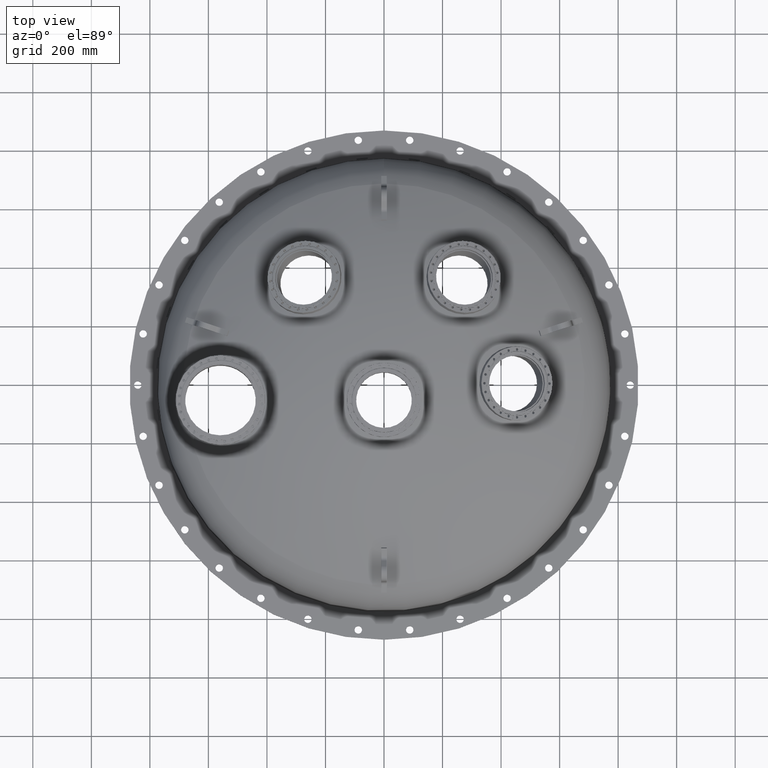
[diagram: clean part render]
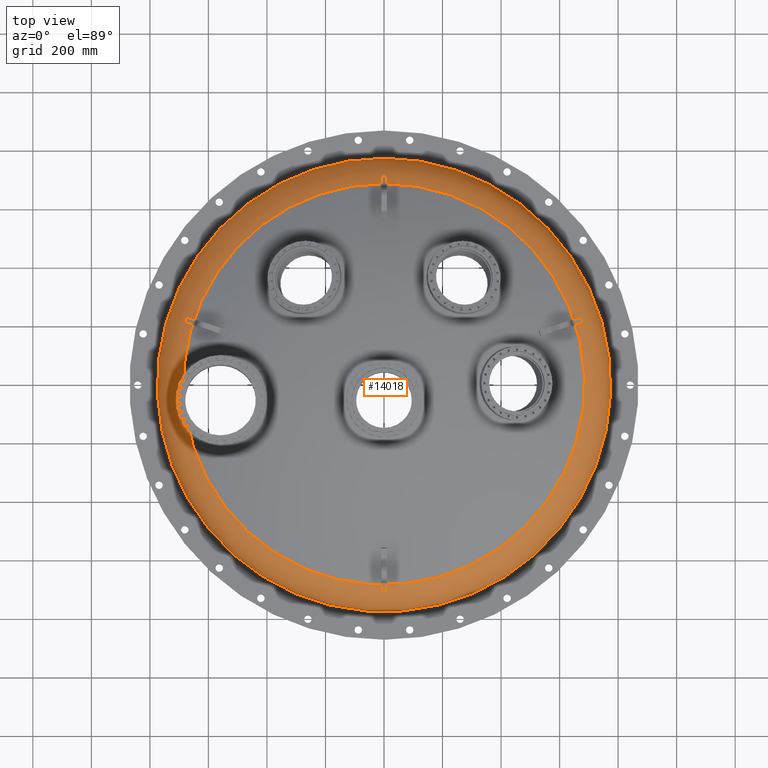
[diagram: same view with one face highlighted and labeled with its STEP entity id]
A machine part, top view. The second image highlights one B-rep face of the part: STEP entity #14018.
In plain terms, the highlighted toroidal blend (fillet) surface has major radius 614.68 mm and minor (blend) radius 160.02 mm.
Its self-contained STEP definition (entity closure, byte-faithful):
#1048 = CARTESIAN_POINT ( 'NONE',  ( -27.01216747661570849, -2.399672396012468845, 7.359969576722638074 ) ) ;
#1309 = TOROIDAL_SURFACE ( 'NONE', #17630, 24.20000000000000995, 6.299999999999999822 ) ;
#2039 = DIRECTION ( 'NONE',  ( 0.0000000000000000000, 1.000000000000000000, 3.672320253778188995E-15 ) ) ;
#2221 = CIRCLE ( 'NONE', #16174, 30.50000000000001066 ) ;
#2672 = DIRECTION ( 'NONE',  ( -0.0000000000000000000, 3.675178358715239233E-15, -1.000000000000000000 ) ) ;
#2717 = CARTESIAN_POINT ( 'NONE',  ( -26.95547353179765437, -1.549982798794369288, 7.420239801015093839 ) ) ;
#2781 = VERTEX_POINT ( 'NONE', #2717 ) ;
#3178 = ORIENTED_EDGE ( 'NONE', *, *, #14120, .T. ) ;
#3760 = CARTESIAN_POINT ( 'NONE',  ( 0.0000000000000000000, -6.529540093916330708E-15, 1.776659377206109891 ) ) ;
#3761 = VERTEX_POINT ( 'NONE', #11248 ) ;
#4333 = VERTEX_POINT ( 'NONE', #19248 ) ;
#4772 = CARTESIAN_POINT ( 'NONE',  ( -26.99467943047633511, -2.720328066586995330, 7.353145743680818747 ) ) ;
#4886 = CARTESIAN_POINT ( 'NONE',  ( 0.0000000000000000000, -4.370956789862821150E-15, 1.776659377206131873 ) ) ;
#4953 = B_SPLINE_CURVE_WITH_KNOTS ( 'NONE', 3,
 ( #16020, #6390, #6513, #16152, #23765, #21886, #4772, #10511, #18140, #1048, #8659, #6764, #13017, #22633 ),
 .UNSPECIFIED., .F., .F.,
 ( 4, 2, 2, 2, 2, 2, 4 ),
 ( 1.936736036716423733E-06, 0.01611801150312849873, 0.03223408627022028572, 0.03626310496199324634, 0.04029212365376620003, 0.04835016103731213516, 0.06446623580440399848 ),
 .UNSPECIFIED. ) ;
#5305 = EDGE_LOOP ( 'NONE', ( #17105 ) ) ;
#6344 = AXIS2_PLACEMENT_3D ( 'NONE', #23012, #17618, #13638 ) ;
#6390 = CARTESIAN_POINT ( 'NONE',  ( -26.76789518029807269, -3.860362771842623442, 7.398399833522565139 ) ) ;
#6513 = CARTESIAN_POINT ( 'NONE',  ( -26.82942584742682257, -3.657596331013978741, 7.381546214448197141 ) ) ;
#6764 = CARTESIAN_POINT ( 'NONE',  ( -27.00583124238778510, -1.973102861633707628, 7.381441011148901943 ) ) ;
#8659 = CARTESIAN_POINT ( 'NONE',  ( -27.01312754610254530, -2.292828471108628641, 7.364302509125232099 ) ) ;
#9636 = EDGE_LOOP ( 'NONE', ( #12490, #3178 ) ) ;
#9938 = EDGE_CURVE ( 'NONE', #3761, #3761, #2221, .T. ) ;
#10012 = DIRECTION ( 'NONE',  ( 0.0000000000000000000, 1.000000000000000000, 3.675178358715239233E-15 ) ) ;
#10268 = FACE_OUTER_BOUND ( 'NONE', #9636, .T. ) ;
#10511 = CARTESIAN_POINT ( 'NONE',  ( -27.00248706321723802, -2.613837067796562774, 7.354563699625181528 ) ) ;
#11248 = CARTESIAN_POINT ( 'NONE',  ( 0.0000000000000000000, 30.50000000000000711, 1.776659377206222024 ) ) ;
#12490 = ORIENTED_EDGE ( 'NONE', *, *, #18470, .T. ) ;
#13017 = CARTESIAN_POINT ( 'NONE',  ( -26.98744068847440047, -1.761025676041349852, 7.398394938155717249 ) ) ;
#13147 = CIRCLE ( 'NONE', #6344, 27.00000000000003908 ) ;
#13638 = DIRECTION ( 'NONE',  ( 0.0000000000000000000, 1.000000000000000000, 3.682935813680705680E-15 ) ) ;
#14018 = ADVANCED_FACE ( 'NONE', ( #14162, #10268 ), #1309, .T. ) ;
#14120 = EDGE_CURVE ( 'NONE', #4333, #2781, #4953, .T. ) ;
#14162 = FACE_OUTER_BOUND ( 'NONE', #5305, .T. ) ;
#15146 = DIRECTION ( 'NONE',  ( -0.0000000000000000000, 3.675178358715239233E-15, -1.000000000000000000 ) ) ;
#16020 = CARTESIAN_POINT ( 'NONE',  ( -26.69297520264650814, -4.060181625358758595, 7.420239801015087622 ) ) ;
#16152 = CARTESIAN_POINT ( 'NONE',  ( -26.92650611121033322, -3.246290569409030713, 7.358798178136015444 ) ) ;
#16174 = AXIS2_PLACEMENT_3D ( 'NONE', #3760, #15146, #2039 ) ;
#17105 = ORIENTED_EDGE ( 'NONE', *, *, #9938, .F. ) ;
#17618 = DIRECTION ( 'NONE',  ( -0.0000000000000000000, 3.675178358715239233E-15, -1.000000000000000000 ) ) ;
#17630 = AXIS2_PLACEMENT_3D ( 'NONE', #4886, #2672, #10012 ) ;
#18140 = CARTESIAN_POINT ( 'NONE',  ( -27.00555153076199844, -2.560352531622569483, 7.355640484342474750 ) ) ;
#18470 = EDGE_CURVE ( 'NONE', #2781, #4333, #13147, .T. ) ;
#19248 = CARTESIAN_POINT ( 'NONE',  ( -26.69297520264650814, -4.060181625358758595, 7.420239801015087622 ) ) ;
#21886 = CARTESIAN_POINT ( 'NONE',  ( -26.98993425176185923, -2.773386143063167442, 7.352803128817789080 ) ) ;
#22633 = CARTESIAN_POINT ( 'NONE',  ( -26.95547353179765437, -1.549982798794369288, 7.420239801015093839 ) ) ;
#23012 = CARTESIAN_POINT ( 'NONE',  ( 0.0000000000000000000, -2.727070473316810751E-14, 7.420239801015099168 ) ) ;
#23765 = CARTESIAN_POINT ( 'NONE',  ( -26.96205388114947255, -3.037750892502633970, 7.352903332797789737 ) ) ;